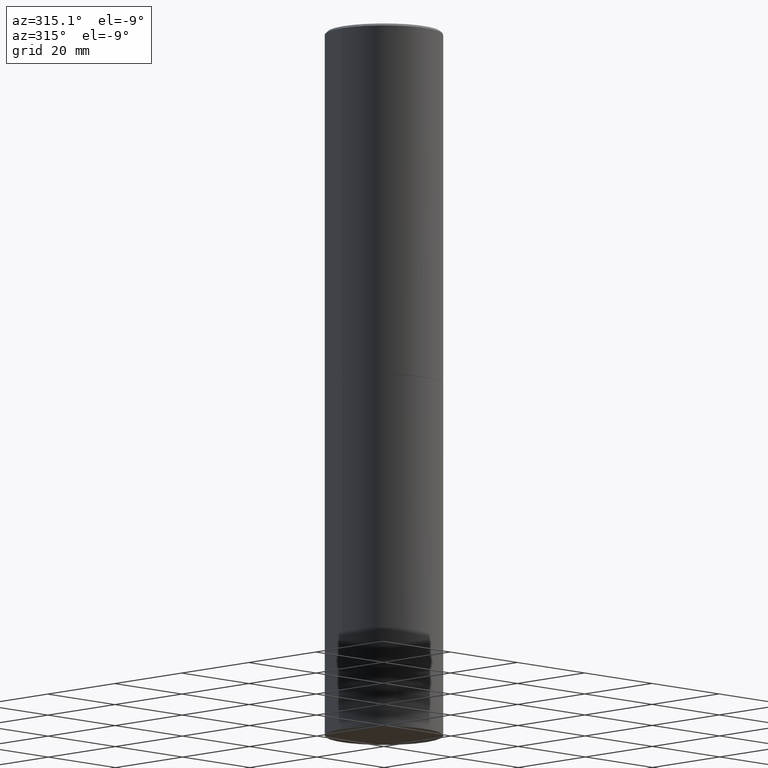
[diagram: clean part render]
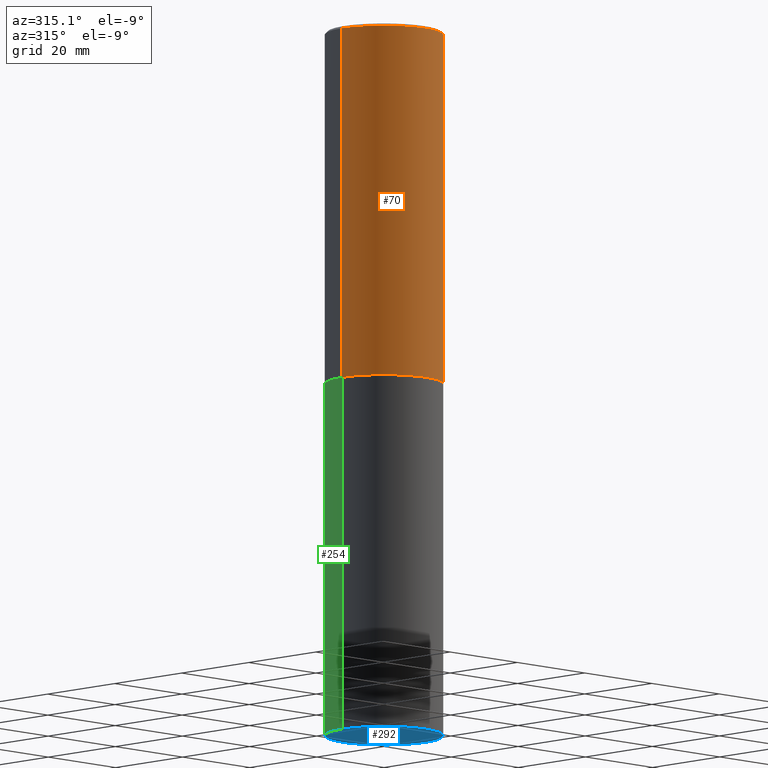
[diagram: same view with three faces highlighted in distinct colors, each labeled with its STEP entity id]
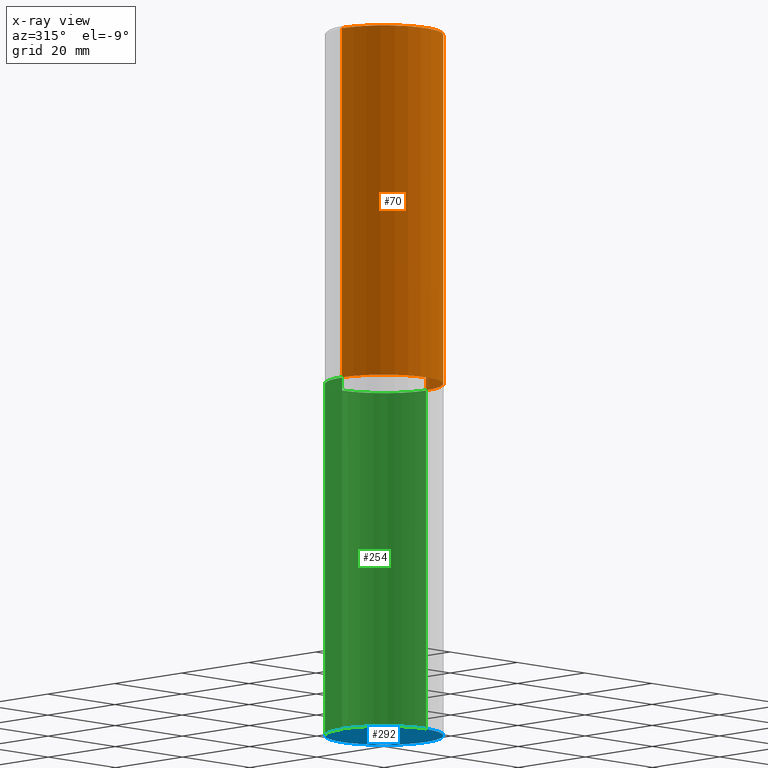
[diagram: x-ray of the same camera — body ghosted, the three highlighted faces saturated]
A machine part, auxiliary view with three faces highlighted in distinct colors.
The next image is the same camera in x-ray (body ghosted, the three faces saturated) — at least one of them is partly hidden behind the body in this view.
Their STEP definitions:

[orange] entity #70 — the highlighted cylindrical surface (partial cylindrical patch) has radius 12.5006 mm, axis along (-0, 0, 1).
#6 = VERTEX_POINT ( 'NONE', #60 ) ;
#17 = VECTOR ( 'NONE', #18, 39.37007874015748143 ) ;
#18 = DIRECTION ( 'NONE',  ( -2.445468806185136877E-29, 3.491481338843145188E-15, 1.000000000000000000 ) ) ;
#27 = EDGE_CURVE ( 'NONE', #6, #298, #132, .T. ) ;
#33 = CARTESIAN_POINT ( 'NONE',  ( -0.4921499999999999764, -1.690881473276754954E-15, -2.951700000000000212 ) ) ;
#51 = CIRCLE ( 'NONE', #294, 0.4921499999999999764 ) ;
#60 = CARTESIAN_POINT ( 'NONE',  ( -0.4921499999999996988, 3.366835455046430506E-15, -0.02000000000000010797 ) ) ;
#64 = DIRECTION ( 'NONE',  ( -2.445468806185136877E-29, 3.491481338843145188E-15, 1.000000000000000000 ) ) ;
#70 = ADVANCED_FACE ( 'NONE', ( #252 ), #306, .T. ) ;
#73 = EDGE_LOOP ( 'NONE', ( #109, #110, #219, #301 ) ) ;
#75 = AXIS2_PLACEMENT_3D ( 'NONE', #147, #313, #223 ) ;
#83 = LINE ( 'NONE', #326, #17 ) ;
#86 = CARTESIAN_POINT ( 'NONE',  ( 4.890937612370299433E-31, -6.982962677686328587E-17, -0.02000000000000010797 ) ) ;
#95 = CARTESIAN_POINT ( 'NONE',  ( 7.218290275216666916E-29, -1.030580546786331359E-14, -2.951700000000000212 ) ) ;
#109 = ORIENTED_EDGE ( 'NONE', *, *, #351, .F. ) ;
#110 = ORIENTED_EDGE ( 'NONE', *, *, #210, .T. ) ;
#111 = VERTEX_POINT ( 'NONE', #33 ) ;
#124 = EDGE_CURVE ( 'NONE', #268, #298, #206, .T. ) ;
#127 = CARTESIAN_POINT ( 'NONE',  ( 0.4921499999999996988, -3.446223716380120377E-15, -0.02000000000000010797 ) ) ;
#132 = CIRCLE ( 'NONE', #339, 0.4921499999999996988 ) ;
#147 = CARTESIAN_POINT ( 'NONE',  ( 0.000000000000000000, 0.000000000000000000, 0.000000000000000000 ) ) ;
#160 = DIRECTION ( 'NONE',  ( -2.445468806185136597E-29, 3.491481338843145583E-15, 1.000000000000000000 ) ) ;
#173 = DIRECTION ( 'NONE',  ( -2.445468806185136597E-29, 3.491481338843145583E-15, 1.000000000000000000 ) ) ;
#206 = LINE ( 'NONE', #311, #280 ) ;
#209 = CARTESIAN_POINT ( 'NONE',  ( 0.4921499999999999764, -1.374247054968660936E-14, -2.951700000000000212 ) ) ;
#210 = EDGE_CURVE ( 'NONE', #111, #268, #51, .T. ) ;
#219 = ORIENTED_EDGE ( 'NONE', *, *, #124, .T. ) ;
#223 = DIRECTION ( 'NONE',  ( 1.000000000000000000, -6.982962677686265922E-15, 4.876176775795935793E-29 ) ) ;
#252 = FACE_OUTER_BOUND ( 'NONE', #73, .T. ) ;
#267 = DIRECTION ( 'NONE',  ( 1.000000000000000000, -6.982962677686265922E-15, 0.000000000000000000 ) ) ;
#268 = VERTEX_POINT ( 'NONE', #209 ) ;
#280 = VECTOR ( 'NONE', #64, 39.37007874015748143 ) ;
#281 = DIRECTION ( 'NONE',  ( 1.000000000000000000, -6.982962677686265922E-15, 0.000000000000000000 ) ) ;
#294 = AXIS2_PLACEMENT_3D ( 'NONE', #95, #160, #267 ) ;
#298 = VERTEX_POINT ( 'NONE', #127 ) ;
#301 = ORIENTED_EDGE ( 'NONE', *, *, #27, .F. ) ;
#306 = CYLINDRICAL_SURFACE ( 'NONE', #75, 0.4921499999999998098 ) ;
#311 = CARTESIAN_POINT ( 'NONE',  ( 0.4921499999999998098, -3.436665081823294593E-15, 2.399810400207968762E-29 ) ) ;
#313 = DIRECTION ( 'NONE',  ( -2.445468806185136597E-29, 3.491481338843145583E-15, 1.000000000000000000 ) ) ;
#326 = CARTESIAN_POINT ( 'NONE',  ( -0.4921499999999998098, 3.496936074043331714E-15, -2.420853904668950949E-29 ) ) ;
#339 = AXIS2_PLACEMENT_3D ( 'NONE', #86, #173, #281 ) ;
#351 = EDGE_CURVE ( 'NONE', #111, #6, #83, .T. ) ;

[blue] entity #292 — the highlighted planar face has unit normal (0, -0, -1).
#15 = DIRECTION ( 'NONE',  ( 2.438088387897960049E-29, -3.491481338843145188E-15, -1.000000000000000000 ) ) ;
#40 = DIRECTION ( 'NONE',  ( 1.000000000000000000, -6.982962677686265922E-15, 0.000000000000000000 ) ) ;
#55 = VERTEX_POINT ( 'NONE', #151 ) ;
#58 = AXIS2_PLACEMENT_3D ( 'NONE', #180, #287, #40 ) ;
#62 = CARTESIAN_POINT ( 'NONE',  ( 1.444171603492632270E-28, -2.061894304653819197E-14, -5.905499999999999972 ) ) ;
#69 = CARTESIAN_POINT ( 'NONE',  ( 3.436665081823440533E-15, 0.4921499999999793262, -5.905500000000001748 ) ) ;
#93 = ORIENTED_EDGE ( 'NONE', *, *, #312, .F. ) ;
#107 = VERTEX_POINT ( 'NONE', #340 ) ;
#140 = CIRCLE ( 'NONE', #324, 0.4921499999999999764 ) ;
#145 = EDGE_CURVE ( 'NONE', #55, #107, #140, .T. ) ;
#151 = CARTESIAN_POINT ( 'NONE',  ( -0.4921499999999999764, -1.196718392382684217E-14, -5.905499999999999972 ) ) ;
#159 = FACE_OUTER_BOUND ( 'NONE', #247, .T. ) ;
#171 = ORIENTED_EDGE ( 'NONE', *, *, #145, .F. ) ;
#174 = DIRECTION ( 'NONE',  ( -2.445468806185136597E-29, 3.491481338843145583E-15, 1.000000000000000000 ) ) ;
#177 = CIRCLE ( 'NONE', #58, 0.4921499999999999764 ) ;
#180 = CARTESIAN_POINT ( 'NONE',  ( 1.444171603492632270E-28, -2.061894304653819197E-14, -5.905499999999999972 ) ) ;
#190 = AXIS2_PLACEMENT_3D ( 'NONE', #69, #15, #212 ) ;
#212 = DIRECTION ( 'NONE',  ( -1.000000000000000000, 6.982962677686265922E-15, -4.876176775795935793E-29 ) ) ;
#247 = EDGE_LOOP ( 'NONE', ( #93, #171 ) ) ;
#255 = DIRECTION ( 'NONE',  ( 1.000000000000000000, -6.982962677686265922E-15, 0.000000000000000000 ) ) ;
#266 = PLANE ( 'NONE',  #190 ) ;
#287 = DIRECTION ( 'NONE',  ( -2.445468806185136597E-29, 3.491481338843145583E-15, 1.000000000000000000 ) ) ;
#292 = ADVANCED_FACE ( 'NONE', ( #159 ), #266, .T. ) ;
#312 = EDGE_CURVE ( 'NONE', #107, #55, #177, .T. ) ;
#324 = AXIS2_PLACEMENT_3D ( 'NONE', #62, #174, #255 ) ;
#340 = CARTESIAN_POINT ( 'NONE',  ( 0.4921499999999999764, -2.405560812836148932E-14, -5.905499999999999972 ) ) ;

[green] entity #254 — the highlighted cylindrical surface (partial cylindrical patch) has radius 12.5006 mm, axis along (-0, 0, 1).
#3 = EDGE_CURVE ( 'NONE', #273, #243, #59, .T. ) ;
#7 = ORIENTED_EDGE ( 'NONE', *, *, #357, .F. ) ;
#9 = CARTESIAN_POINT ( 'NONE',  ( 0.4921499999999999764, -1.374596203102545079E-14, -2.952700000000000102 ) ) ;
#21 = LINE ( 'NONE', #198, #239 ) ;
#35 = DIRECTION ( 'NONE',  ( 1.000000000000000000, -6.982962677686265922E-15, 0.000000000000000000 ) ) ;
#40 = DIRECTION ( 'NONE',  ( 1.000000000000000000, -6.982962677686265922E-15, 0.000000000000000000 ) ) ;
#44 = CARTESIAN_POINT ( 'NONE',  ( -0.4921499999999999764, 3.496936074043332897E-15, -2.420853904668951509E-29 ) ) ;
#45 = CYLINDRICAL_SURFACE ( 'NONE', #156, 0.4921499999999999764 ) ;
#53 = ORIENTED_EDGE ( 'NONE', *, *, #312, .T. ) ;
#55 = VERTEX_POINT ( 'NONE', #151 ) ;
#58 = AXIS2_PLACEMENT_3D ( 'NONE', #180, #287, #40 ) ;
#59 = CIRCLE ( 'NONE', #202, 0.4921499999999999764 ) ;
#97 = DIRECTION ( 'NONE',  ( -2.445468806185136597E-29, 3.491481338843145583E-15, 1.000000000000000000 ) ) ;
#100 = DIRECTION ( 'NONE',  ( 1.000000000000000000, -6.982962677686265922E-15, 4.876176775795935793E-29 ) ) ;
#107 = VERTEX_POINT ( 'NONE', #340 ) ;
#120 = LINE ( 'NONE', #44, #310 ) ;
#123 = CARTESIAN_POINT ( 'NONE',  ( 0.000000000000000000, 0.000000000000000000, 0.000000000000000000 ) ) ;
#151 = CARTESIAN_POINT ( 'NONE',  ( -0.4921499999999999764, -1.196718392382684217E-14, -5.905499999999999972 ) ) ;
#156 = AXIS2_PLACEMENT_3D ( 'NONE', #123, #97, #100 ) ;
#177 = CIRCLE ( 'NONE', #58, 0.4921499999999999764 ) ;
#180 = CARTESIAN_POINT ( 'NONE',  ( 1.444171603492632270E-28, -2.061894304653819197E-14, -5.905499999999999972 ) ) ;
#191 = EDGE_LOOP ( 'NONE', ( #53, #329, #359, #7 ) ) ;
#198 = CARTESIAN_POINT ( 'NONE',  ( 0.4921499999999999764, -3.436665081823295777E-15, 2.399810400207969603E-29 ) ) ;
#202 = AXIS2_PLACEMENT_3D ( 'NONE', #253, #314, #35 ) ;
#235 = DIRECTION ( 'NONE',  ( -2.445468806185136877E-29, 3.491481338843145188E-15, 1.000000000000000000 ) ) ;
#239 = VECTOR ( 'NONE', #245, 39.37007874015748143 ) ;
#242 = EDGE_CURVE ( 'NONE', #55, #243, #120, .T. ) ;
#243 = VERTEX_POINT ( 'NONE', #291 ) ;
#245 = DIRECTION ( 'NONE',  ( -2.445468806185136877E-29, 3.491481338843145188E-15, 1.000000000000000000 ) ) ;
#253 = CARTESIAN_POINT ( 'NONE',  ( 7.220735744022852519E-29, -1.030929694920215502E-14, -2.952700000000000102 ) ) ;
#254 = ADVANCED_FACE ( 'NONE', ( #349 ), #45, .T. ) ;
#273 = VERTEX_POINT ( 'NONE', #9 ) ;
#287 = DIRECTION ( 'NONE',  ( -2.445468806185136597E-29, 3.491481338843145583E-15, 1.000000000000000000 ) ) ;
#291 = CARTESIAN_POINT ( 'NONE',  ( -0.4921499999999999764, -1.196718392382684217E-14, -2.952700000000000102 ) ) ;
#310 = VECTOR ( 'NONE', #235, 39.37007874015748143 ) ;
#312 = EDGE_CURVE ( 'NONE', #107, #55, #177, .T. ) ;
#314 = DIRECTION ( 'NONE',  ( -2.445468806185136597E-29, 3.491481338843145583E-15, 1.000000000000000000 ) ) ;
#329 = ORIENTED_EDGE ( 'NONE', *, *, #242, .T. ) ;
#340 = CARTESIAN_POINT ( 'NONE',  ( 0.4921499999999999764, -2.405560812836148932E-14, -5.905499999999999972 ) ) ;
#349 = FACE_OUTER_BOUND ( 'NONE', #191, .T. ) ;
#357 = EDGE_CURVE ( 'NONE', #107, #273, #21, .T. ) ;
#359 = ORIENTED_EDGE ( 'NONE', *, *, #3, .F. ) ;